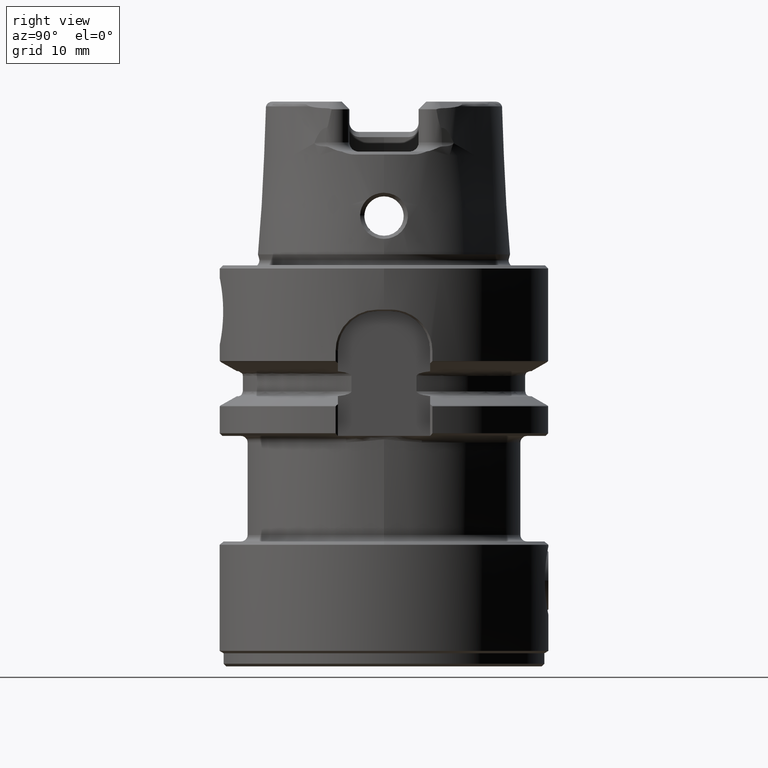
[diagram: clean part render]
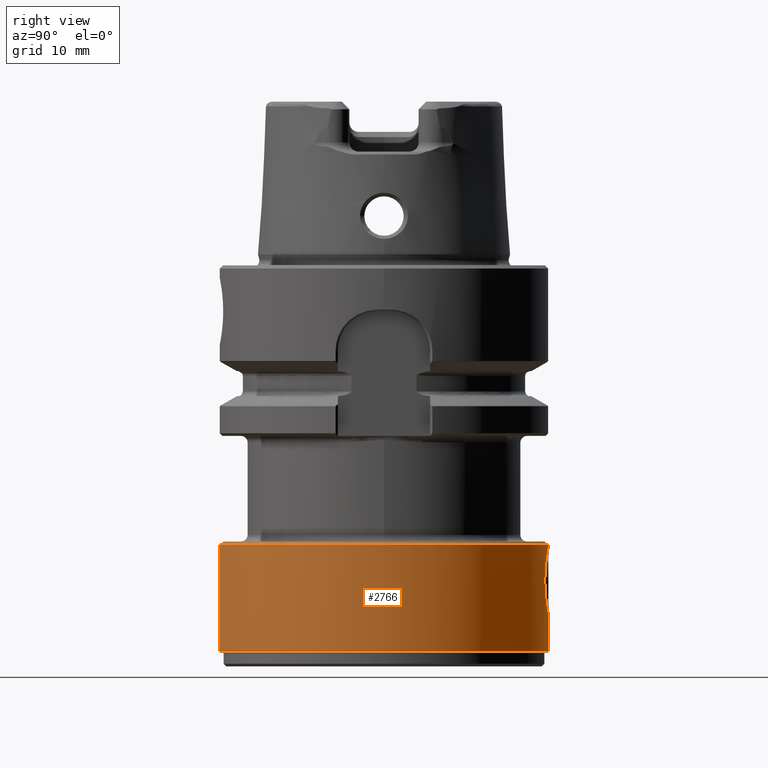
[diagram: same view with one face highlighted and labeled with its STEP entity id]
A machine part, right view. The second image highlights one B-rep face of the part: STEP entity #2766.
In plain terms, the highlighted cylindrical surface (partial cylindrical patch) has radius 25 mm, axis along (-0, -0, -1).
Its self-contained STEP definition (entity closure, byte-faithful):
#2180=VERTEX_POINT('NONE',#5218);
#2194=EDGE_CURVE('NONE',#3914,#2180,#5232,.F.);
#2216=VERTEX_POINT('NONE',#5256);
#2438=EDGE_CURVE('NONE',#3530,#3914,#5499,.T.);
#2766=ADVANCED_FACE('NONE',(#5853),#5854,.T.);
#3126=EDGE_CURVE('NONE',#2180,#4426,#6254,.T.);
#3168=VERTEX_POINT('NONE',#6302);
#3240=VERTEX_POINT('NONE',#6381);
#3428=EDGE_CURVE('NONE',#2216,#3168,#6592,.T.);
#3530=VERTEX_POINT('NONE',#6708);
#3636=EDGE_CURVE('NONE',#3240,#3530,#6828,.F.);
#3844=EDGE_CURVE('NONE',#2216,#3240,#7057,.T.);
#3914=VERTEX_POINT('NONE',#7135);
#3998=EDGE_CURVE('NONE',#3168,#4426,#7226,.T.);
#4426=VERTEX_POINT('NONE',#7694);
#5218=CARTESIAN_POINT('',(8.60977955596809E-014,25.0,-53.1));
#5232=B_SPLINE_CURVE_WITH_KNOTS('',3,(#9707,#9708,#9709,#9710,#9711,#9712,#9713,#9714,#9715,#9716,#9717,#9718,#9719,#9720,#9721,#9722,#9723,#9724,#9725,#9726,#9727,#9728,#9729,#9730,#9731,#9732,#9733,#9734,#9735,#9736,#9737,#9738,#9739,#9740,#9741,#9742,#9743,#9744,#9745,#9746,#9747,#9748,#9749),.UNSPECIFIED.,.F.,.F.,(4,2,2,2,2,2,2,2,2,2,3,2,2,2,2,2,2,2,2,2,4),(-9.72965197058808,-8.75671137700775,-7.78377078342742,-6.81083018984708,-5.83788959626676,-4.86494900268643,-3.89200840910609,-2.91900630682957,-1.94600420455305,-0.973002102276521,0.0,0.973002102276523,1.94600420455305,2.91900630682957,3.89200840910609,4.86494900268642,5.83788959626675,6.81083018984709,7.78377078342742,8.75671137700775,9.72965197058808),.UNSPECIFIED.);
#5256=CARTESIAN_POINT('',(-8.72870334710783E-014,-25.0,-42.5));
#5499=LINE('',#10368,#10369);
#5853=FACE_OUTER_BOUND('',#11228,.T.);
#5854=CYLINDRICAL_SURFACE('',#11229,25.0);
#6254=LINE('',#12398,#12399);
#6302=CARTESIAN_POINT('',(-8.72870334710783E-014,-25.0,-58.6535898384862));
#6381=CARTESIAN_POINT('',(25.0,0.0,-42.5));
#6592=LINE('',#13269,#13270);
#6708=CARTESIAN_POINT('',(8.42254164732099E-014,25.0,-42.5));
#6828=CIRCLE('',#14167,25.0);
#7057=CIRCLE('',#14794,25.0);
#7135=CARTESIAN_POINT('',(8.79296635503124E-014,25.0,-42.8));
#7226=CIRCLE('',#15299,25.0);
#7694=CARTESIAN_POINT('',(8.42254164732099E-014,25.0,-58.6535898384862));
#9707=CARTESIAN_POINT('',(-1.97339319442202,24.9219926831746,-52.706912790898));
#9708=CARTESIAN_POINT('',(-1.65631329334488,24.9470999578549,-52.8384525893373));
#9709=CARTESIAN_POINT('',(-1.32540676507013,24.9670655013682,-52.9380819155365));
#9710=CARTESIAN_POINT('',(-0.659410279387423,24.9935239797422,-53.0688712010081));
#9711=CARTESIAN_POINT('',(-0.324313531193358,25.0,-53.1));
#9712=CARTESIAN_POINT('',(0.32431353119353,25.0,-53.1));
#9713=CARTESIAN_POINT('',(0.659410279387595,24.9935239797421,-53.0688712010081));
#9714=CARTESIAN_POINT('',(1.3254067650703,24.9670655013682,-52.9380819155365));
#9715=CARTESIAN_POINT('',(1.65631329334505,24.9470999578549,-52.8384525893373));
#9716=CARTESIAN_POINT('',(2.29047309549934,24.8968854084943,-52.5753729924586));
#9717=CARTESIAN_POINT('',(2.59424887846347,24.8666394217396,-52.411713590187));
#9718=CARTESIAN_POINT('',(3.15577148474206,24.801632803321,-52.0338856177517));
#9719=CARTESIAN_POINT('',(3.41350843409666,24.7669358966648,-51.8196914121249));
#9720=CARTESIAN_POINT('',(3.86970583192632,24.6997679550717,-51.3634940142952));
#9721=CARTESIAN_POINT('',(4.08390163956717,24.6649246603403,-51.1057503694402));
#9722=CARTESIAN_POINT('',(4.46172313979404,24.5993859217674,-50.5442319896954));
#9723=CARTESIAN_POINT('',(4.62537515471404,24.5687577204051,-50.2404671199935));
#9724=CARTESIAN_POINT('',(4.88844655497433,24.5177699269674,-49.6063286026487));
#9725=CARTESIAN_POINT('',(4.98807510641603,24.4974195699177,-49.2754321282504));
#9726=CARTESIAN_POINT('',(5.11886751709618,24.4704240706291,-48.6094383473815));
#9727=CARTESIAN_POINT('',(5.15000000000009,24.4637997866235,-48.2743340340922));
#9728=CARTESIAN_POINT('',(5.15000000000009,24.4637997866235,-47.95));
#9729=CARTESIAN_POINT('',(5.15000000000009,24.4637997866235,-47.6256659659078));
#9730=CARTESIAN_POINT('',(5.11886751709618,24.4704240706291,-47.2905616526185));
#9731=CARTESIAN_POINT('',(4.98807510641603,24.4974195699177,-46.6245678717496));
#9732=CARTESIAN_POINT('',(4.88844655497433,24.5177699269674,-46.2936713973513));
#9733=CARTESIAN_POINT('',(4.62537515471404,24.5687577204051,-45.6595328800065));
#9734=CARTESIAN_POINT('',(4.46172313979404,24.5993859217674,-45.3557680103046));
#9735=CARTESIAN_POINT('',(4.08390163956717,24.6649246603403,-44.7942496305598));
#9736=CARTESIAN_POINT('',(3.86970583192632,24.6997679550717,-44.5365059857048));
#9737=CARTESIAN_POINT('',(3.41350843409666,24.7669358966648,-44.0803085878751));
#9738=CARTESIAN_POINT('',(3.15577148474206,24.801632803321,-43.8661143822483));
#9739=CARTESIAN_POINT('',(2.59424887846347,24.8666394217396,-43.488286409813));
#9740=CARTESIAN_POINT('',(2.29047309549934,24.8968854084943,-43.3246270075414));
#9741=CARTESIAN_POINT('',(1.65631329334505,24.9470999578549,-43.0615474106627));
#9742=CARTESIAN_POINT('',(1.32540676507031,24.9670655013682,-42.9619180844635));
#9743=CARTESIAN_POINT('',(0.659410279387596,24.9935239797421,-42.8311287989919));
#9744=CARTESIAN_POINT('',(0.324313531193532,25.0,-42.8));
#9745=CARTESIAN_POINT('',(-0.324313531193356,25.0,-42.8));
#9746=CARTESIAN_POINT('',(-0.659410279387421,24.9935239797422,-42.8311287989919));
#9747=CARTESIAN_POINT('',(-1.32540676507013,24.9670655013682,-42.9619180844635));
#9748=CARTESIAN_POINT('',(-1.65631329334488,24.9470999578549,-43.0615474106627));
#9749=CARTESIAN_POINT('',(-1.97339319442202,24.9219926831746,-43.1930872091021));
#10368=CARTESIAN_POINT('',(8.42254164732099E-014,25.0,-61.0));
#10369=VECTOR('',#18032,1000.0);
#11228=EDGE_LOOP('',(#18357,#18358,#18359,#18360,#18361,#18362,#18363));
#11229=AXIS2_PLACEMENT_3D('',#18364,#18365,#18366);
#12398=CARTESIAN_POINT('',(8.42254164732099E-014,25.0,-61.0));
#12399=VECTOR('',#18839,1000.0);
#13269=CARTESIAN_POINT('',(-8.72870334710783E-014,-25.0,-61.0));
#13270=VECTOR('',#19258,1000.0);
#14167=AXIS2_PLACEMENT_3D('',#19597,#19598,#19599);
#14794=AXIS2_PLACEMENT_3D('',#19868,#19869,#19870);
#15299=AXIS2_PLACEMENT_3D('',#20060,#20061,#20062);
#18032=DIRECTION('',(0.0,0.0,-1.0));
#18357=ORIENTED_EDGE('',*,*,#2438,.F.);
#18358=ORIENTED_EDGE('',*,*,#3636,.F.);
#18359=ORIENTED_EDGE('',*,*,#3844,.F.);
#18360=ORIENTED_EDGE('',*,*,#3428,.T.);
#18361=ORIENTED_EDGE('',*,*,#3998,.T.);
#18362=ORIENTED_EDGE('',*,*,#3126,.F.);
#18363=ORIENTED_EDGE('',*,*,#2194,.F.);
#18364=CARTESIAN_POINT('',(0.0,0.0,-61.0));
#18365=DIRECTION('',(-0.0,-0.0,-1.0));
#18366=DIRECTION('',(-3.49148133884313E-015,-1.0,0.0));
#18839=DIRECTION('',(0.0,0.0,-1.0));
#19258=DIRECTION('',(0.0,0.0,-1.0));
#19597=CARTESIAN_POINT('',(0.0,0.0,-42.5));
#19598=DIRECTION('',(-0.0,0.0,-1.0));
#19599=DIRECTION('',(-3.49148133884313E-015,-1.0,0.0));
#19868=CARTESIAN_POINT('',(0.0,0.0,-42.5));
#19869=DIRECTION('',(0.0,0.0,1.0));
#19870=DIRECTION('',(-3.49148133884313E-015,-1.0,0.0));
#20060=CARTESIAN_POINT('',(0.0,0.0,-58.6535898384862));
#20061=DIRECTION('',(0.0,0.0,1.0));
#20062=DIRECTION('',(-3.49148133884313E-015,-1.0,0.0));